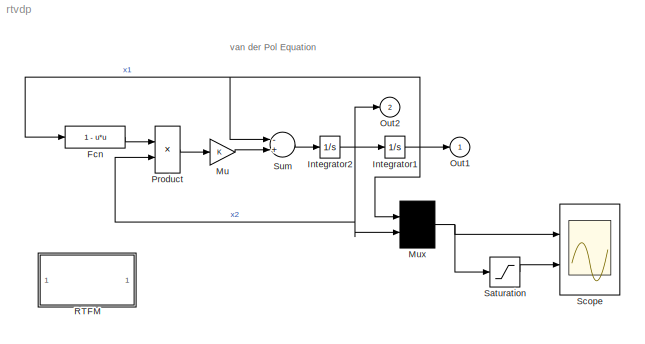
MODEL rtvdp
KIND model
BLOCK [Fcn] Fcn
  Expr = 1 - u*u
BLOCK [Integrator] Integrator1
  InitialCondition = 2
  Ports = [1, 1]
BLOCK [Integrator] Integrator2
  Ports = [1, 1]
BLOCK [Gain] Mu
BLOCK [Mux] Mux
  Inputs = 2
  Ports = [2, 1]
BLOCK [Outport] Out1
  BusOutputAsStruct = off
  IconDisplay = Port number
  InitialOutput = 0
BLOCK [Outport] Out2
  BusOutputAsStruct = off
  IconDisplay = Port number
  InitialOutput = 0
  Port = 2
BLOCK [Product] Product
  Ports = [2, 1]
  RndMeth = Floor
BLOCK [SubSystem] RTFM 
  MaskDisplay = disp('Info')
  MaskIconFrame = on
  MaskIconOpaque = on
  MaskIconRotate = none
  MaskIconUnits = autoscale
  MaskType = Frame-Based Simulation Info
  Ports = []
  TreatAsAtomicUnit = off
BLOCK [Saturate] Saturation
  LowerLimit = -2
  UpperLimit = 2
BLOCK [Scope] Scope
  DataFormat = Structure
  ExtModeLoggingTrig = on
  ExtModeUploadOption = log
  NumInputPorts = 2
  Ports = [2]
  TimeRange = 10
  YMax = 5~5
  YMin = -3~-5
BLOCK [Sum] Sum
  Inputs = -+
  Ports = [2, 1]
ANNOTATION (root): van der Pol Equation
ANNOTATION RTFM : How to run this demo:\n\n1) Build the model using Tools->Real-Time Workshop->Build Model.\n2) Connect to the real-time code using Simulation->Connect to target.\n3) Start the real-time execution using Simulation->Start real-time code.
LINE Fcn:1 -> Product:1
NET Integrator1:1 -> Fcn:1, Mux:1, Out1:1, Sum:1
NET Integrator2:1 -> Integrator1:1, Mux:2, Out2:1, Product:2
LINE Mu:1 -> Sum:2
NET Mux:1 -> Saturation:1, Scope:1
LINE Product:1 -> Mu:1
LINE Saturation:1 -> Scope:2
LINE Sum:1 -> Integrator2:1
note: NET lines group one-source signal fan-out (src -> all destinations, sorted); 1:1 wires keep LINE
